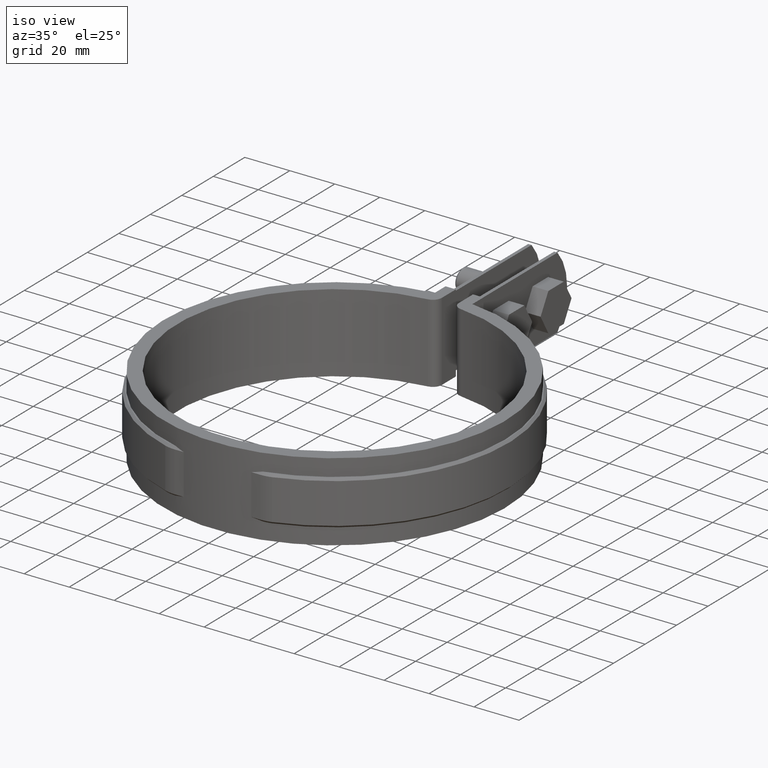
[diagram: clean part render]
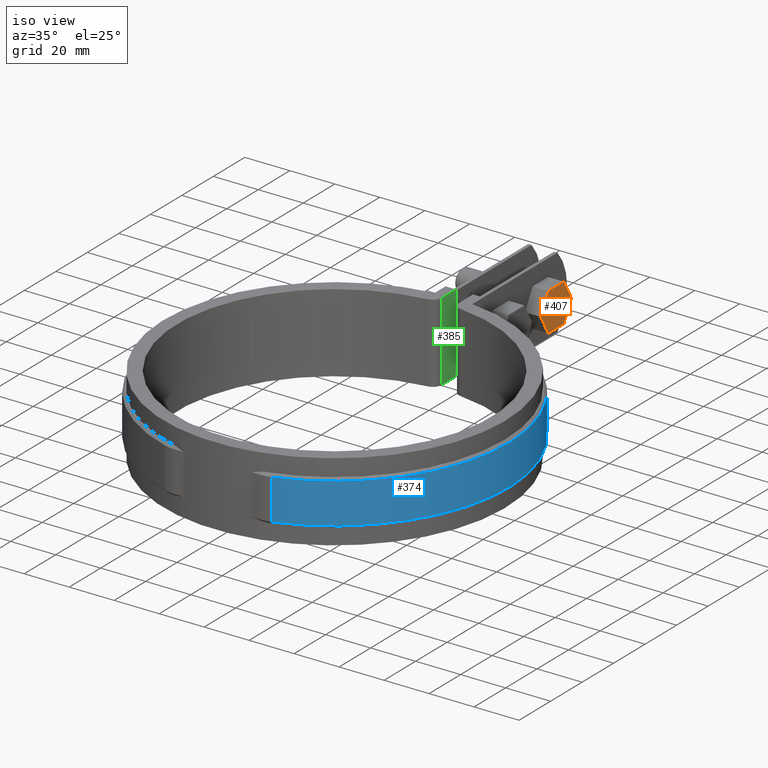
[diagram: same view with three faces highlighted in distinct colors, each labeled with its STEP entity id]
A machine part, iso view with three faces highlighted in distinct colors.
Their STEP definitions:

[orange] entity #407 — the highlighted planar face has unit normal (-1, -0, 0).
#407 = ADVANCED_FACE( '', ( #673 ), #674, .F. );
#673 = FACE_OUTER_BOUND( '', #1759, .T. );
#674 = PLANE( '', #1760 );
#1759 = EDGE_LOOP( '', ( #4150, #4151, #4152, #4153, #4154, #4155 ) );
#1760 = AXIS2_PLACEMENT_3D( '', #4156, #4157, #4158 );
#4150 = ORIENTED_EDGE( '', *, *, #4856, .T. );
#4151 = ORIENTED_EDGE( '', *, *, #4859, .T. );
#4152 = ORIENTED_EDGE( '', *, *, #4862, .T. );
#4153 = ORIENTED_EDGE( '', *, *, #4863, .T. );
#4154 = ORIENTED_EDGE( '', *, *, #4864, .T. );
#4155 = ORIENTED_EDGE( '', *, *, #4865, .T. );
#4156 = CARTESIAN_POINT( '', ( 13.4999999999997, 106.574709848459, -24.4999999999998 ) );
#4157 = DIRECTION( '', ( -1.00000000000000, -6.02334540269725E-017, 0.000000000000000 ) );
#4158 = DIRECTION( '', ( 5.21637013450398E-017, -0.866025403784430, 0.500000000000014 ) );
#4856 = EDGE_CURVE( '', #5410, #5408, #5411, .T. );
#4859 = EDGE_CURVE( '', #5408, #5413, #5415, .T. );
#4862 = EDGE_CURVE( '', #5413, #5420, #5421, .T. );
#4863 = EDGE_CURVE( '', #5420, #5422, #5423, .T. );
#4864 = EDGE_CURVE( '', #5422, #5424, #5425, .T. );
#4865 = EDGE_CURVE( '', #5424, #5410, #5426, .T. );
#5408 = VERTEX_POINT( '', #7964 );
#5410 = VERTEX_POINT( '', #7967 );
#5411 = LINE( '', #7968, #7969 );
#5413 = VERTEX_POINT( '', #7972 );
#5415 = LINE( '', #7975, #7976 );
#5420 = VERTEX_POINT( '', #7981 );
#5421 = LINE( '', #7982, #7983 );
#5422 = VERTEX_POINT( '', #7984 );
#5423 = LINE( '', #7985, #7986 );
#5424 = VERTEX_POINT( '', #7987 );
#5425 = LINE( '', #7988, #7989 );
#5426 = LINE( '', #7990, #7991 );
#7964 = CARTESIAN_POINT( '', ( 13.4999999999997, 126.204619000905, -24.4999999999998 ) );
#7967 = CARTESIAN_POINT( '', ( 13.4999999999997, 116.389664424682, -24.4999999999998 ) );
#7968 = CARTESIAN_POINT( '', ( 13.4999999999997, 116.389664424682, -24.4999999999998 ) );
#7969 = VECTOR( '', #8734, 999.999999999981 );
#7972 = CARTESIAN_POINT( '', ( 13.4999999999997, 131.112096289017, -16.0000000000000 ) );
#7975 = CARTESIAN_POINT( '', ( 13.4999999999997, 126.204619000905, -24.4999999999998 ) );
#7976 = VECTOR( '', #8737, 1000.00000000001 );
#7981 = CARTESIAN_POINT( '', ( 13.4999999999997, 126.204619000905, -7.50000000000016 ) );
#7982 = CARTESIAN_POINT( '', ( 13.4999999999997, 131.112096289017, -16.0000000000000 ) );
#7983 = VECTOR( '', #8744, 1000.00000000001 );
#7984 = CARTESIAN_POINT( '', ( 13.4999999999997, 116.389664424682, -7.50000000000016 ) );
#7985 = CARTESIAN_POINT( '', ( 13.4999999999997, 126.204619000905, -7.50000000000016 ) );
#7986 = VECTOR( '', #8745, 999.999999999981 );
#7987 = CARTESIAN_POINT( '', ( 13.4999999999997, 111.482187136570, -16.0000000000000 ) );
#7988 = CARTESIAN_POINT( '', ( 13.4999999999997, 116.389664424682, -7.50000000000016 ) );
#7989 = VECTOR( '', #8746, 1000.00000000001 );
#7990 = CARTESIAN_POINT( '', ( 13.4999999999997, 111.482187136570, -16.0000000000000 ) );
#7991 = VECTOR( '', #8747, 1000.00000000001 );
#8734 = DIRECTION( '', ( -6.02334540269725E-017, 1.00000000000000, -3.33066907387559E-016 ) );
#8737 = DIRECTION( '', ( -3.01167270134854E-017, 0.499999999999986, 0.866025403784447 ) );
#8744 = DIRECTION( '', ( 3.01167270134854E-017, -0.499999999999986, 0.866025403784447 ) );
#8745 = DIRECTION( '', ( 6.02334540269725E-017, -1.00000000000000, 2.06067008371527E-065 ) );
#8746 = DIRECTION( '', ( 3.01167270134854E-017, -0.499999999999986, -0.866025403784447 ) );
#8747 = DIRECTION( '', ( -3.01167270134854E-017, 0.499999999999986, -0.866025403784447 ) );

[blue] entity #374 — the highlighted cylindrical surface (partial cylindrical patch) has radius 77.4 mm, axis along (0, 0, -1).
#374 = ADVANCED_FACE( '', ( #604 ), #605, .T. );
#604 = FACE_OUTER_BOUND( '', #1690, .T. );
#605 = CYLINDRICAL_SURFACE( '', #1691, 77.4000000000000 );
#1690 = EDGE_LOOP( '', ( #3524, #3525, #3526, #3527 ) );
#1691 = AXIS2_PLACEMENT_3D( '', #3528, #3529, #3530 );
#3524 = ORIENTED_EDGE( '', *, *, #4696, .T. );
#3525 = ORIENTED_EDGE( '', *, *, #4796, .T. );
#3526 = ORIENTED_EDGE( '', *, *, #4799, .F. );
#3527 = ORIENTED_EDGE( '', *, *, #4784, .T. );
#3528 = CARTESIAN_POINT( '', ( 6.93889390390723E-015, -2.77555756156289E-014, -26.0000000000000 ) );
#3529 = DIRECTION( '', ( 0.000000000000000, 0.000000000000000, -1.00000000000000 ) );
#3530 = DIRECTION( '', ( 0.306337160039884, -0.951923076923077, 0.000000000000000 ) );
#4696 = EDGE_CURVE( '', #5146, #5147, #5148, .T. );
#4784 = EDGE_CURVE( '', #5301, #5146, #5302, .T. );
#4796 = EDGE_CURVE( '', #5147, #5315, #5319, .F. );
#4799 = EDGE_CURVE( '', #5301, #5315, #5322, .T. );
#5146 = VERTEX_POINT( '', #6713 );
#5147 = VERTEX_POINT( '', #6714 );
#5148 = LINE( '', #6715, #6716 );
#5301 = VERTEX_POINT( '', #7708 );
#5302 = CIRCLE( '', #7709, 77.4000000000000 );
#5315 = VERTEX_POINT( '', #7726 );
#5319 = CIRCLE( '', #7731, 77.4000000000000 );
#5322 = LINE( '', #7736, #7737 );
#6713 = CARTESIAN_POINT( '', ( 8.39999999999995, 76.9428359238208, -25.0000000000000 ) );
#6714 = CARTESIAN_POINT( '', ( 8.39999999999995, 76.9428359238208, -7.00000000000001 ) );
#6715 = CARTESIAN_POINT( '', ( 8.39999999999995, 76.9428359238208, -26.0000000000000 ) );
#6716 = VECTOR( '', #8512, 1000.00000000000 );
#7708 = CARTESIAN_POINT( '', ( 23.7104961870871, -73.6788461538462, -25.0000000000000 ) );
#7709 = AXIS2_PLACEMENT_3D( '', #8612, #8613, #8614 );
#7726 = CARTESIAN_POINT( '', ( 23.7104961870871, -73.6788461538462, -7.00000000000001 ) );
#7731 = AXIS2_PLACEMENT_3D( '', #8638, #8639, #8640 );
#7736 = CARTESIAN_POINT( '', ( 23.7104961870871, -73.6788461538462, -26.0000000000000 ) );
#7737 = VECTOR( '', #8643, 1000.00000000000 );
#8512 = DIRECTION( '', ( 0.000000000000000, 0.000000000000000, 1.00000000000000 ) );
#8612 = CARTESIAN_POINT( '', ( 6.93889390390723E-015, -2.77555756156289E-014, -25.0000000000000 ) );
#8613 = DIRECTION( '', ( 0.000000000000000, 0.000000000000000, 1.00000000000000 ) );
#8614 = DIRECTION( '', ( 1.00000000000000, 0.000000000000000, 0.000000000000000 ) );
#8638 = CARTESIAN_POINT( '', ( 6.93889390390723E-015, -2.77555756156289E-014, -7.00000000000000 ) );
#8639 = DIRECTION( '', ( 0.000000000000000, 0.000000000000000, 1.00000000000000 ) );
#8640 = DIRECTION( '', ( 1.00000000000000, 0.000000000000000, 0.000000000000000 ) );
#8643 = DIRECTION( '', ( 0.000000000000000, 0.000000000000000, 1.00000000000000 ) );

[green] entity #385 — the highlighted planar face has unit normal (1, -0, 0).
#385 = ADVANCED_FACE( '', ( #626 ), #627, .T. );
#626 = FACE_OUTER_BOUND( '', #1712, .T. );
#627 = PLANE( '', #1713 );
#1712 = EDGE_LOOP( '', ( #3600, #3601, #3602, #3603 ) );
#1713 = AXIS2_PLACEMENT_3D( '', #3604, #3605, #3606 );
#3600 = ORIENTED_EDGE( '', *, *, #4689, .T. );
#3601 = ORIENTED_EDGE( '', *, *, #4809, .F. );
#3602 = ORIENTED_EDGE( '', *, *, #4816, .F. );
#3603 = ORIENTED_EDGE( '', *, *, #4800, .T. );
#3604 = CARTESIAN_POINT( '', ( -3.80000000000000, 73.4872097714970, -32.0000000000000 ) );
#3605 = DIRECTION( '', ( 1.00000000000000, -4.16333634234434E-017, 0.000000000000000 ) );
#3606 = DIRECTION( '', ( -4.16333634234434E-017, -1.00000000000000, 0.000000000000000 ) );
#4689 = EDGE_CURVE( '', #5133, #5131, #5134, .T. );
#4800 = EDGE_CURVE( '', #5323, #5133, #5324, .T. );
#4809 = EDGE_CURVE( '', #5338, #5131, #5340, .T. );
#4816 = EDGE_CURVE( '', #5323, #5338, #5347, .T. );
#5131 = VERTEX_POINT( '', #6690 );
#5133 = VERTEX_POINT( '', #6693 );
#5134 = LINE( '', #6694, #6695 );
#5323 = VERTEX_POINT( '', #7738 );
#5324 = LINE( '', #7739, #7740 );
#5338 = VERTEX_POINT( '', #7756 );
#5340 = LINE( '', #7758, #7759 );
#5347 = LINE( '', #7772, #7773 );
#6690 = CARTESIAN_POINT( '', ( -3.80000000000000, 82.4000000000000, 1.50000000000000 ) );
#6693 = CARTESIAN_POINT( '', ( -3.80000000000000, 82.4000000000000, -33.5000000000000 ) );
#6694 = CARTESIAN_POINT( '', ( -3.80000000000000, 82.4000000000000, -32.0000000000000 ) );
#6695 = VECTOR( '', #8505, 1000.00000000000 );
#7738 = CARTESIAN_POINT( '', ( -3.80000000000000, 73.4872097714970, -33.5000000000000 ) );
#7739 = CARTESIAN_POINT( '', ( -3.80000000000000, 73.4872097714970, -33.5000000000000 ) );
#7740 = VECTOR( '', #8644, 1000.00000000000 );
#7756 = CARTESIAN_POINT( '', ( -3.80000000000000, 73.4872097714970, 1.50000000000000 ) );
#7758 = CARTESIAN_POINT( '', ( -3.80000000000000, 73.4872097714970, 1.50000000000000 ) );
#7759 = VECTOR( '', #8665, 1000.00000000000 );
#7772 = CARTESIAN_POINT( '', ( -3.80000000000000, 73.4872097714970, -32.0000000000000 ) );
#7773 = VECTOR( '', #8672, 1000.00000000000 );
#8505 = DIRECTION( '', ( 0.000000000000000, 0.000000000000000, 1.00000000000000 ) );
#8644 = DIRECTION( '', ( 6.17161236645595E-017, 1.00000000000000, 0.000000000000000 ) );
#8665 = DIRECTION( '', ( 6.17161236645595E-017, 1.00000000000000, 0.000000000000000 ) );
#8672 = DIRECTION( '', ( 0.000000000000000, 0.000000000000000, 1.00000000000000 ) );